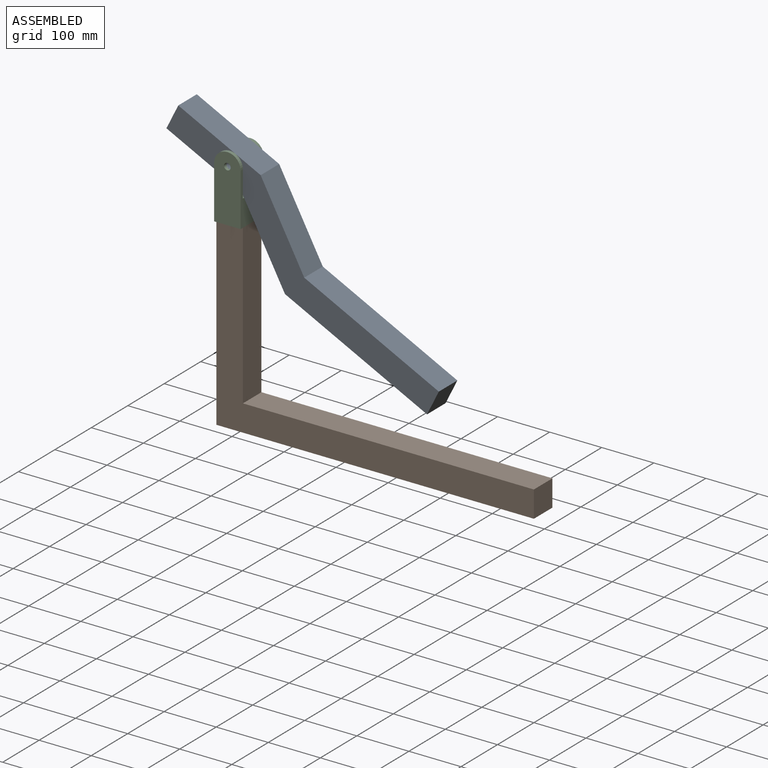
[diagram: assembled view]
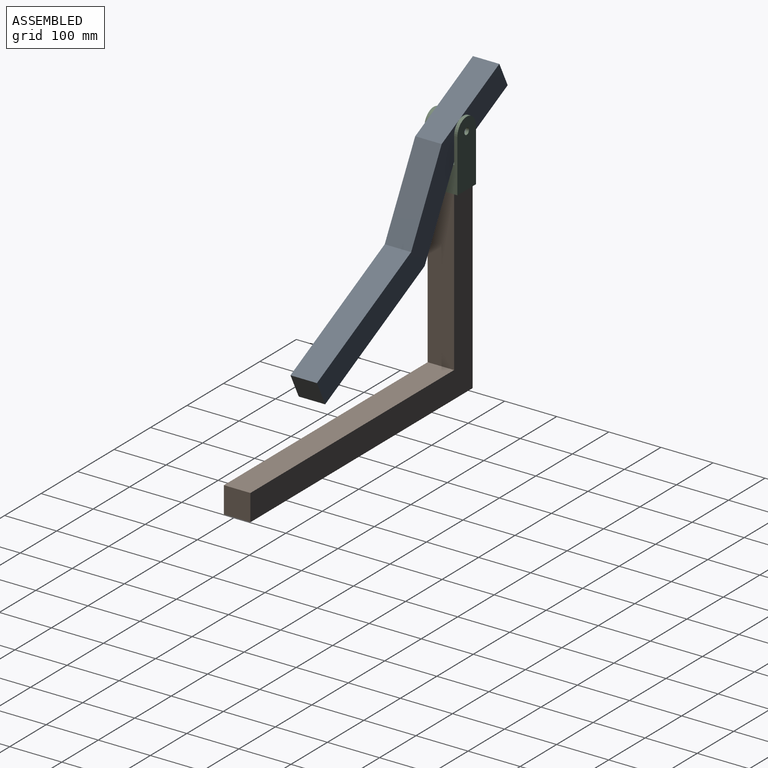
[diagram: assembled view, second angle]
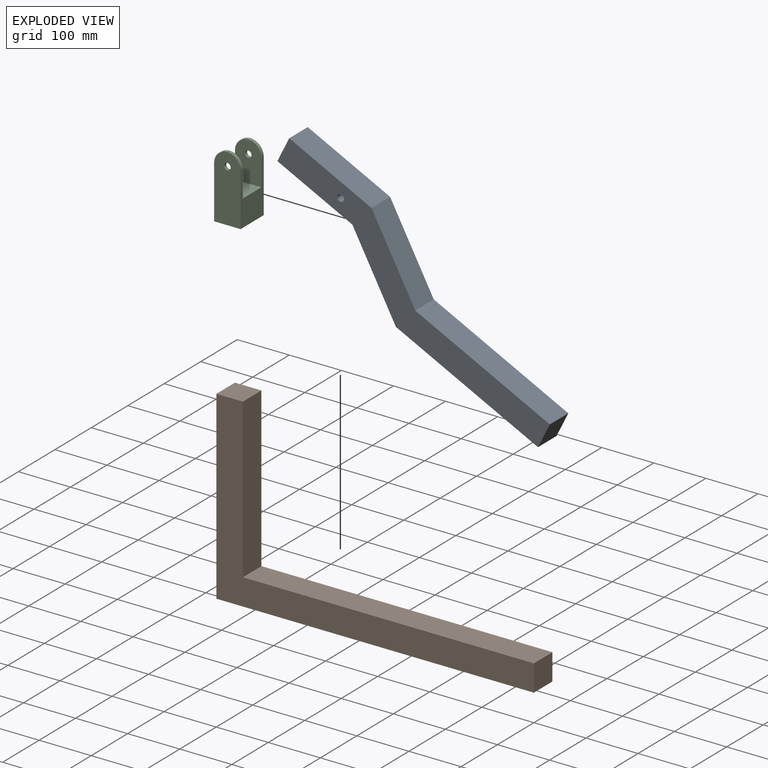
[diagram: exploded view]
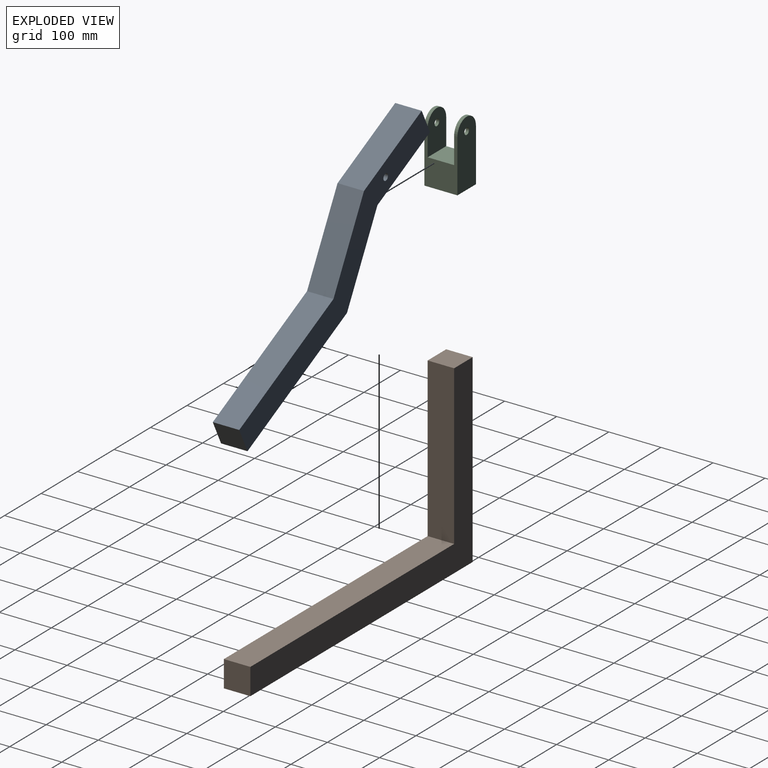
[diagram: exploded view, second angle]
ASSEMBLY  parts=3 mates=2
PART A: 14 faces, bbox 609.6x50.8x152.7 mm
  f0: plane 50.8x0.06mm, normal (1,0,0), area 2.9mm2, adj f1,f9,f12,f13
  f1: plane 50.8x0.08mm, normal (-0.58,0,-0.82), area 5mm2, adj f0,f9,f12,f13
  f2: plane 143.83x101.6mm, normal (-0.58,0,-0.82), area 8945.8mm2, adj f3,f10,f12,f13
  f3: plane 304.8x50.8mm, normal (0,0,-1), area 15483.8mm2, adj f2,f4,f12,f13
  f4: plane 50.8x50.8mm, normal (1,0,0), area 2580.6mm2, adj f3,f5,f12,f13
  f5: plane 288.67x50.8mm, normal (0,0,1), area 14664.3mm2, adj f4,f6,f12,f13
  f6: plane 144.23x101.88mm, normal (0.58,0,0.82), area 8970.6mm2, adj f5,f7,f12,f13
  f7: plane 176.7x50.8mm, normal (0,0,1), area 8976.4mm2, adj f6,f8,f12,f13
  f8: plane 51.08x50.8mm, normal (-1,0,0), area 2595mm2, adj f7,f10,f12,f13
  f9: plane 50.8x0.08mm, normal (0,0,1), area 4.1mm2, adj f0,f1,f12,f13
  f10: plane 160.97x50.8mm, normal (0,0,-1), area 8177.1mm2, adj f2,f8,f12,f13
  f11: cylinder r=6.35mm len=50.8mm, axis (0,1,0), area 2026.8mm2, adj f12,f13
  f12: plane 609.6x152.68mm, normal (0,-1,0), area 32529.9mm2, adj f0,f1,f2,f3,f4,f5,f6,f7
  f13: plane 609.6x152.68mm, normal (0,1,0), area 32529.9mm2, adj f0,f1,f2,f3,f4,f5,f6,f7
PART B: 8 faces, bbox 609.6x50.8x355.6 mm
  f0: plane 355.6x50.8mm, normal (-1,0,0), area 18064.5mm2, adj f1,f5,f6,f7
  f1: plane 609.6x50.8mm, normal (0,0,-1), area 30967.7mm2, adj f0,f2,f6,f7
  f2: plane 50.8x50.8mm, normal (1,0,0), area 2580.6mm2, adj f1,f3,f6,f7
  f3: plane 558.8x50.8mm, normal (0,0,1), area 28387mm2, adj f2,f4,f6,f7
  f4: plane 304.8x50.8mm, normal (1,0,0), area 15483.8mm2, adj f3,f5,f6,f7
  f5: plane 50.8x50.8mm, normal (0,0,1), area 2580.6mm2, adj f0,f4,f6,f7
  f6: plane 609.6x355.6mm, normal (0,-1,0), area 46451.5mm2, adj f0,f1,f2,f3,f4,f5
  f7: plane 609.6x355.6mm, normal (0,1,0), area 46451.5mm2, adj f0,f1,f2,f3,f4,f5
PART C: 12 faces, bbox 50.8x63.5x127 mm
  f0: cylinder r=25.4mm len=50.8mm, axis (0,1,0), area 506.7mm2, adj f2,f4,f8,f11
  f1: cylinder r=6.35mm len=12.7mm, axis (0,1,0), area 253.4mm2, adj f8,f11
  f2: plane 101.6x63.5mm, normal (1,0,0), area 3871mm2, adj f0,f3,f5,f7,f8,f9,f10,f11
  f3: cylinder r=25.4mm len=50.8mm, axis (0,1,0), area 506.7mm2, adj f2,f4,f7,f10
  f4: plane 101.6x63.5mm, normal (-1,0,0), area 3871mm2, adj f0,f3,f5,f7,f8,f9,f10,f11
  f5: plane 63.5x50.8mm, normal (0,0,-1), area 3225.8mm2, adj f2,f4,f7,f8
  f6: cylinder r=6.35mm len=12.7mm, axis (0,1,0), area 253.4mm2, adj f7,f10
  f7: plane 127x50.8mm, normal (0,-1,0), area 6048mm2, adj f2,f3,f4,f5,f6
  f8: plane 127x50.8mm, normal (0,1,0), area 6048mm2, adj f0,f1,f2,f4,f5
  f9: plane 50.8x50.8mm, normal (0,0,1), area 2580.6mm2, adj f2,f4,f10,f11
  f10: plane 76.2x50.8mm, normal (0,1,0), area 3467.4mm2, adj f2,f3,f4,f6,f9
  f11: plane 76.2x50.8mm, normal (0,-1,0), area 3467.4mm2, adj f0,f1,f2,f4,f9
PLACE A rot(axis=(0,1,0),26.5deg) t=(-54.37,18.75,9.45)mm
PLACE B t=(21.99,18.75,-204.93)mm
PLACE C t=(41.31,25.1,71.19)mm fixed
MATE revolute C.f0 <-> A.f11  axis (0,-1,0) through (-31.75,-38.4,140.38)mm
MATE fastened B.f5 <-> C.f5  axis (0,0,1) through (-31.75,-6.65,38.78)mm
